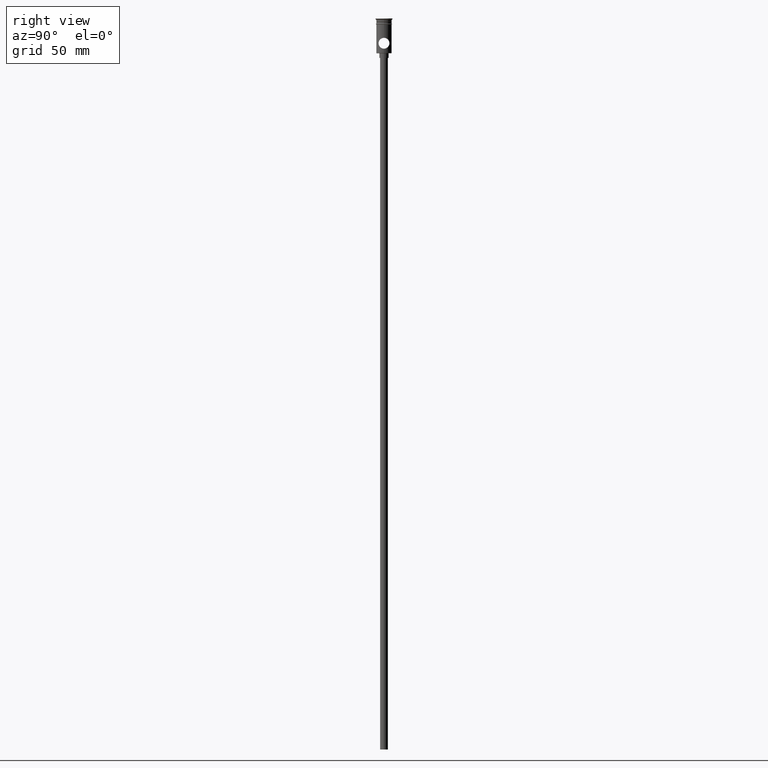
[diagram: clean part render]
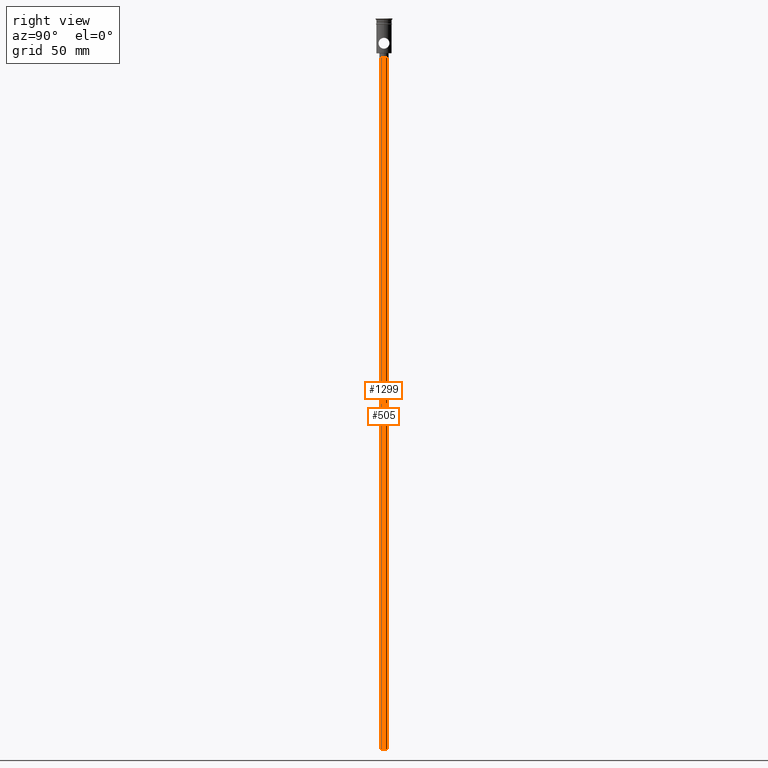
[diagram: same view with one multi-face feature highlighted, each face labeled with its STEP entity id]
A machine part, right view. The highlighted faces form ONE feature: a constant-radius fillet chain: 2 tangent blend faces with common blend radius 2.5 mm. The faces share edges in the B-rep.
Their STEP definitions:
[1] entity #505 (Cylinder):
#90 = ORIENTED_EDGE ( 'NONE', *, *, #949, .T. ) ;
#116 = DIRECTION ( 'NONE',  ( 0.000000000000000000, 0.000000000000000000, -1.000000000000000000 ) ) ;
#224 = CARTESIAN_POINT ( 'NONE',  ( 0.000000000000000000, 0.000000000000000000, -472.5000000000000568 ) ) ;
#262 = VERTEX_POINT ( 'NONE', #468 ) ;
#303 = ORIENTED_EDGE ( 'NONE', *, *, #1185, .F. ) ;
#307 = CARTESIAN_POINT ( 'NONE',  ( 0.000000000000000000, 0.000000000000000000, -472.5000000000000568 ) ) ;
#309 = DIRECTION ( 'NONE',  ( -1.000000000000000000, 0.000000000000000000, 0.000000000000000000 ) ) ;
#341 = VERTEX_POINT ( 'NONE', #954 ) ;
#344 = VECTOR ( 'NONE', #351, 1000.000000000000000 ) ;
#351 = DIRECTION ( 'NONE',  ( -0.000000000000000000, -0.000000000000000000, 1.000000000000000000 ) ) ;
#393 = EDGE_LOOP ( 'NONE', ( #396, #1087, #90, #303 ) ) ;
#396 = ORIENTED_EDGE ( 'NONE', *, *, #1407, .F. ) ;
#468 = CARTESIAN_POINT ( 'NONE',  ( 2.500000000000000000, 0.000000000000000000, -472.5000000000000568 ) ) ;
#505 = ADVANCED_FACE ( 'NONE', ( #1206 ), #1429, .T. ) ;
#533 = CARTESIAN_POINT ( 'NONE',  ( -2.500000000000000000, 3.061616997868383141E-16, -472.5000000000000568 ) ) ;
#604 = VECTOR ( 'NONE', #1191, 1000.000000000000000 ) ;
#644 = LINE ( 'NONE', #533, #604 ) ;
#695 = CIRCLE ( 'NONE', #742, 2.500000000000000000 ) ;
#712 = CARTESIAN_POINT ( 'NONE',  ( 2.500000000000000000, 0.000000000000000000, -472.5000000000000568 ) ) ;
#742 = AXIS2_PLACEMENT_3D ( 'NONE', #1078, #838, #974 ) ;
#818 = LINE ( 'NONE', #712, #344 ) ;
#838 = DIRECTION ( 'NONE',  ( 0.000000000000000000, 0.000000000000000000, -1.000000000000000000 ) ) ;
#855 = EDGE_CURVE ( 'NONE', #341, #1001, #644, .T. ) ;
#861 = DIRECTION ( 'NONE',  ( -0.000000000000000000, -0.000000000000000000, 1.000000000000000000 ) ) ;
#880 = CARTESIAN_POINT ( 'NONE',  ( -2.500000000000000000, 3.061616997868383141E-16, -25.50000000000000000 ) ) ;
#949 = EDGE_CURVE ( 'NONE', #1001, #1066, #695, .T. ) ;
#954 = CARTESIAN_POINT ( 'NONE',  ( -2.500000000000000000, 3.061616997868383141E-16, -472.5000000000000568 ) ) ;
#974 = DIRECTION ( 'NONE',  ( -1.000000000000000000, 0.000000000000000000, 0.000000000000000000 ) ) ;
#1001 = VERTEX_POINT ( 'NONE', #880 ) ;
#1007 = CARTESIAN_POINT ( 'NONE',  ( 2.500000000000000000, 0.000000000000000000, -25.50000000000000000 ) ) ;
#1029 = AXIS2_PLACEMENT_3D ( 'NONE', #224, #116, #309 ) ;
#1066 = VERTEX_POINT ( 'NONE', #1007 ) ;
#1078 = CARTESIAN_POINT ( 'NONE',  ( 0.000000000000000000, 0.000000000000000000, -25.50000000000000000 ) ) ;
#1087 = ORIENTED_EDGE ( 'NONE', *, *, #855, .T. ) ;
#1185 = EDGE_CURVE ( 'NONE', #262, #1066, #818, .T. ) ;
#1191 = DIRECTION ( 'NONE',  ( -0.000000000000000000, -0.000000000000000000, 1.000000000000000000 ) ) ;
#1206 = FACE_OUTER_BOUND ( 'NONE', #393, .T. ) ;
#1303 = DIRECTION ( 'NONE',  ( 1.000000000000000000, 0.000000000000000000, 0.000000000000000000 ) ) ;
#1314 = AXIS2_PLACEMENT_3D ( 'NONE', #307, #861, #1303 ) ;
#1407 = EDGE_CURVE ( 'NONE', #341, #262, #1463, .T. ) ;
#1429 = CYLINDRICAL_SURFACE ( 'NONE', #1314, 2.500000000000000000 ) ;
#1463 = CIRCLE ( 'NONE', #1029, 2.500000000000000000 ) ;
[2] entity #1299 (Cylinder):
#1 = DIRECTION ( 'NONE',  ( 0.000000000000000000, 0.000000000000000000, -1.000000000000000000 ) ) ;
#58 = DIRECTION ( 'NONE',  ( 1.000000000000000000, 0.000000000000000000, 0.000000000000000000 ) ) ;
#64 = CIRCLE ( 'NONE', #160, 2.500000000000000000 ) ;
#67 = AXIS2_PLACEMENT_3D ( 'NONE', #291, #966, #58 ) ;
#160 = AXIS2_PLACEMENT_3D ( 'NONE', #1022, #1, #448 ) ;
#258 = DIRECTION ( 'NONE',  ( 0.000000000000000000, 0.000000000000000000, -1.000000000000000000 ) ) ;
#262 = VERTEX_POINT ( 'NONE', #468 ) ;
#269 = CARTESIAN_POINT ( 'NONE',  ( 0.000000000000000000, 0.000000000000000000, -25.50000000000000000 ) ) ;
#291 = CARTESIAN_POINT ( 'NONE',  ( 0.000000000000000000, 0.000000000000000000, -472.5000000000000568 ) ) ;
#338 = ORIENTED_EDGE ( 'NONE', *, *, #701, .F. ) ;
#341 = VERTEX_POINT ( 'NONE', #954 ) ;
#344 = VECTOR ( 'NONE', #351, 1000.000000000000000 ) ;
#351 = DIRECTION ( 'NONE',  ( -0.000000000000000000, -0.000000000000000000, 1.000000000000000000 ) ) ;
#380 = EDGE_CURVE ( 'NONE', #1066, #1001, #413, .T. ) ;
#413 = CIRCLE ( 'NONE', #1434, 2.500000000000000000 ) ;
#432 = EDGE_LOOP ( 'NONE', ( #916, #338, #1315, #709 ) ) ;
#448 = DIRECTION ( 'NONE',  ( -1.000000000000000000, 0.000000000000000000, 0.000000000000000000 ) ) ;
#468 = CARTESIAN_POINT ( 'NONE',  ( 2.500000000000000000, 0.000000000000000000, -472.5000000000000568 ) ) ;
#501 = FACE_OUTER_BOUND ( 'NONE', #432, .T. ) ;
#510 = CYLINDRICAL_SURFACE ( 'NONE', #67, 2.500000000000000000 ) ;
#533 = CARTESIAN_POINT ( 'NONE',  ( -2.500000000000000000, 3.061616997868383141E-16, -472.5000000000000568 ) ) ;
#604 = VECTOR ( 'NONE', #1191, 1000.000000000000000 ) ;
#644 = LINE ( 'NONE', #533, #604 ) ;
#701 = EDGE_CURVE ( 'NONE', #262, #341, #64, .T. ) ;
#709 = ORIENTED_EDGE ( 'NONE', *, *, #380, .T. ) ;
#712 = CARTESIAN_POINT ( 'NONE',  ( 2.500000000000000000, 0.000000000000000000, -472.5000000000000568 ) ) ;
#818 = LINE ( 'NONE', #712, #344 ) ;
#855 = EDGE_CURVE ( 'NONE', #341, #1001, #644, .T. ) ;
#880 = CARTESIAN_POINT ( 'NONE',  ( -2.500000000000000000, 3.061616997868383141E-16, -25.50000000000000000 ) ) ;
#916 = ORIENTED_EDGE ( 'NONE', *, *, #855, .F. ) ;
#954 = CARTESIAN_POINT ( 'NONE',  ( -2.500000000000000000, 3.061616997868383141E-16, -472.5000000000000568 ) ) ;
#966 = DIRECTION ( 'NONE',  ( -0.000000000000000000, -0.000000000000000000, 1.000000000000000000 ) ) ;
#1001 = VERTEX_POINT ( 'NONE', #880 ) ;
#1007 = CARTESIAN_POINT ( 'NONE',  ( 2.500000000000000000, 0.000000000000000000, -25.50000000000000000 ) ) ;
#1022 = CARTESIAN_POINT ( 'NONE',  ( 0.000000000000000000, 0.000000000000000000, -472.5000000000000568 ) ) ;
#1062 = DIRECTION ( 'NONE',  ( -1.000000000000000000, 0.000000000000000000, 0.000000000000000000 ) ) ;
#1066 = VERTEX_POINT ( 'NONE', #1007 ) ;
#1185 = EDGE_CURVE ( 'NONE', #262, #1066, #818, .T. ) ;
#1191 = DIRECTION ( 'NONE',  ( -0.000000000000000000, -0.000000000000000000, 1.000000000000000000 ) ) ;
#1299 = ADVANCED_FACE ( 'NONE', ( #501 ), #510, .T. ) ;
#1315 = ORIENTED_EDGE ( 'NONE', *, *, #1185, .T. ) ;
#1434 = AXIS2_PLACEMENT_3D ( 'NONE', #269, #258, #1062 ) ;